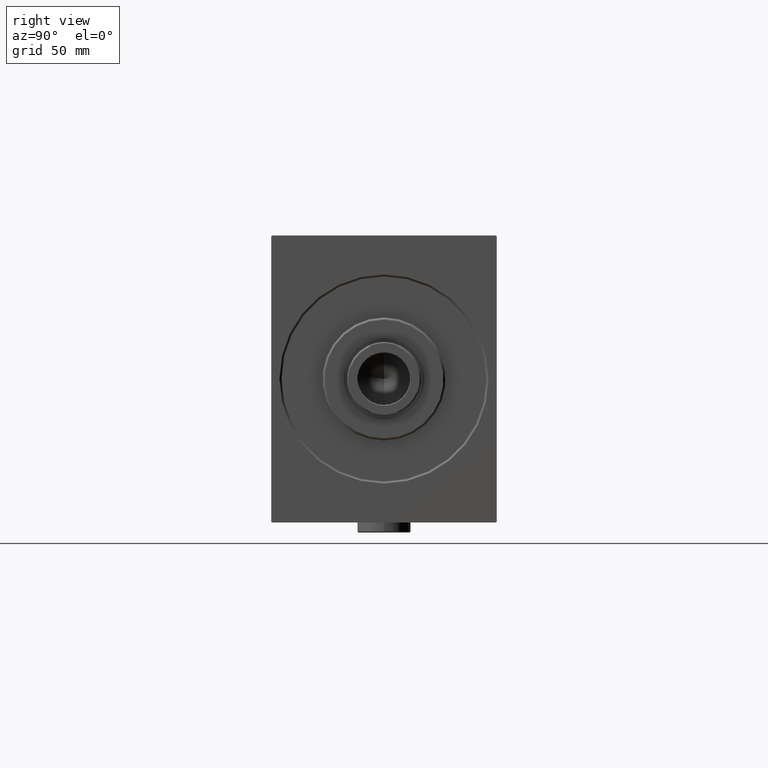
[diagram: clean part render]
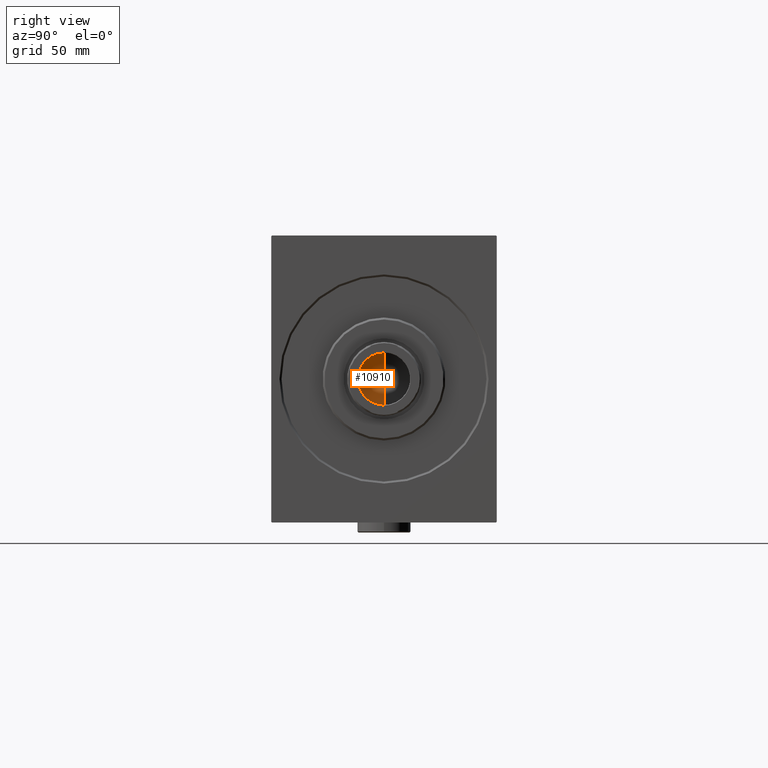
[diagram: same view with one face highlighted and labeled with its STEP entity id]
A machine part, right view. The second image highlights one B-rep face of the part: STEP entity #10910.
In plain terms, the highlighted conical surface has half-angle 59 deg.
Its self-contained STEP definition (entity closure, byte-faithful):
#71 = DIRECTION ( 'NONE',  ( -0.000000000000000000, -0.000000000000000000, 1.000000000000000000 ) ) ;
#3136 = CARTESIAN_POINT ( 'NONE',  ( 0.000000000000000000, 0.000000000000000000, 254.0000000000000000 ) ) ;
#3316 = ORIENTED_EDGE ( 'NONE', *, *, #34691, .F. ) ;
#6046 = CIRCLE ( 'NONE', #32588, 12.74999999999999467 ) ;
#6586 = CARTESIAN_POINT ( 'NONE',  ( 0.000000000000000000, 0.000000000000000000, 254.0000000000000000 ) ) ;
#6643 = VECTOR ( 'NONE', #21589, 1000.000000000000000 ) ;
#6953 = DIRECTION ( 'NONE',  ( -0.000000000000000000, -0.000000000000000000, 1.000000000000000000 ) ) ;
#8341 = CONICAL_SURFACE ( 'NONE', #33437, 12.74999999999999467, 1.029744258676655422 ) ;
#10896 = VECTOR ( 'NONE', #28038, 1000.000000000000000 ) ;
#10910 = ADVANCED_FACE ( 'NONE', ( #40694 ), #8341, .F. ) ;
#14543 = DIRECTION ( 'NONE',  ( 1.000000000000000000, 0.000000000000000000, 0.000000000000000000 ) ) ;
#15331 = CARTESIAN_POINT ( 'NONE',  ( -12.74999999999999467, 1.561424668912874519E-15, 254.0000000000000000 ) ) ;
#18365 = ORIENTED_EDGE ( 'NONE', *, *, #29447, .T. ) ;
#20427 = LINE ( 'NONE', #38360, #10896 ) ;
#21589 = DIRECTION ( 'NONE',  ( -0.8571673007021127777, 1.049727191138619189E-16, 0.5150380749100533784 ) ) ;
#24046 = VERTEX_POINT ( 'NONE', #37457 ) ;
#24300 = DIRECTION ( 'NONE',  ( 1.000000000000000000, 0.000000000000000000, 0.000000000000000000 ) ) ;
#24973 = CARTESIAN_POINT ( 'NONE',  ( -12.74999999999999467, 1.561424668912874519E-15, 254.0000000000000000 ) ) ;
#26024 = VERTEX_POINT ( 'NONE', #15331 ) ;
#28038 = DIRECTION ( 'NONE',  ( 0.8571673007021127777, 0.000000000000000000, 0.5150380749100533784 ) ) ;
#29447 = EDGE_CURVE ( 'NONE', #31125, #26024, #43134, .T. ) ;
#30947 = CARTESIAN_POINT ( 'NONE',  ( -1.026246296720136938E-14, 0.000000000000000000, 246.3390271073986355 ) ) ;
#31125 = VERTEX_POINT ( 'NONE', #30947 ) ;
#32588 = AXIS2_PLACEMENT_3D ( 'NONE', #3136, #6953, #14543 ) ;
#33437 = AXIS2_PLACEMENT_3D ( 'NONE', #6586, #71, #24300 ) ;
#34691 = EDGE_CURVE ( 'NONE', #31125, #24046, #20427, .T. ) ;
#35235 = ORIENTED_EDGE ( 'NONE', *, *, #39424, .T. ) ;
#37457 = CARTESIAN_POINT ( 'NONE',  ( 12.74999999999999467, 0.000000000000000000, 254.0000000000000000 ) ) ;
#38360 = CARTESIAN_POINT ( 'NONE',  ( 12.74999999999999467, 0.000000000000000000, 254.0000000000000000 ) ) ;
#39424 = EDGE_CURVE ( 'NONE', #26024, #24046, #6046, .T. ) ;
#40694 = FACE_OUTER_BOUND ( 'NONE', #41843, .T. ) ;
#41843 = EDGE_LOOP ( 'NONE', ( #3316, #18365, #35235 ) ) ;
#43134 = LINE ( 'NONE', #24973, #6643 ) ;